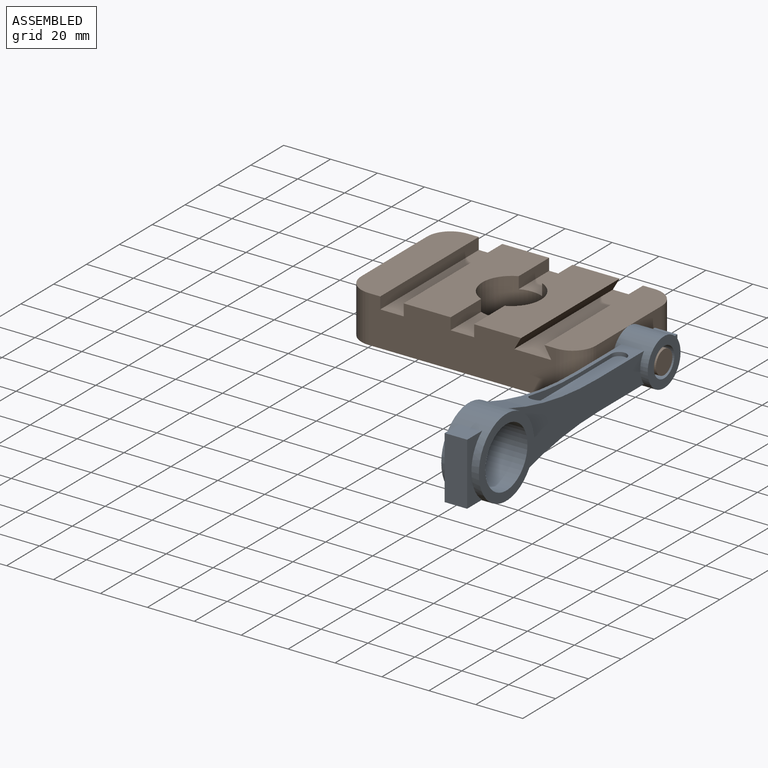
[diagram: assembled view]
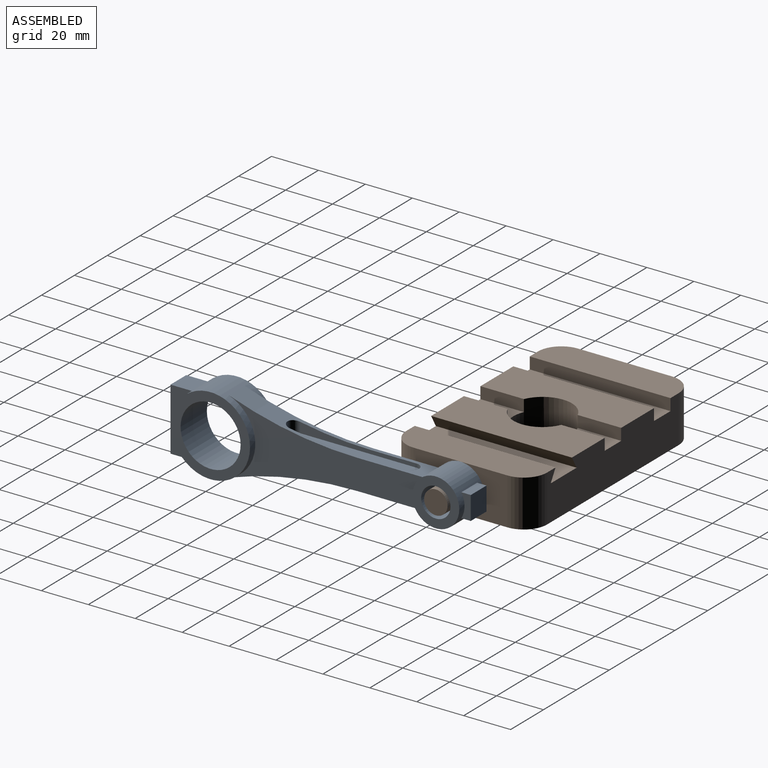
[diagram: assembled view, second angle]
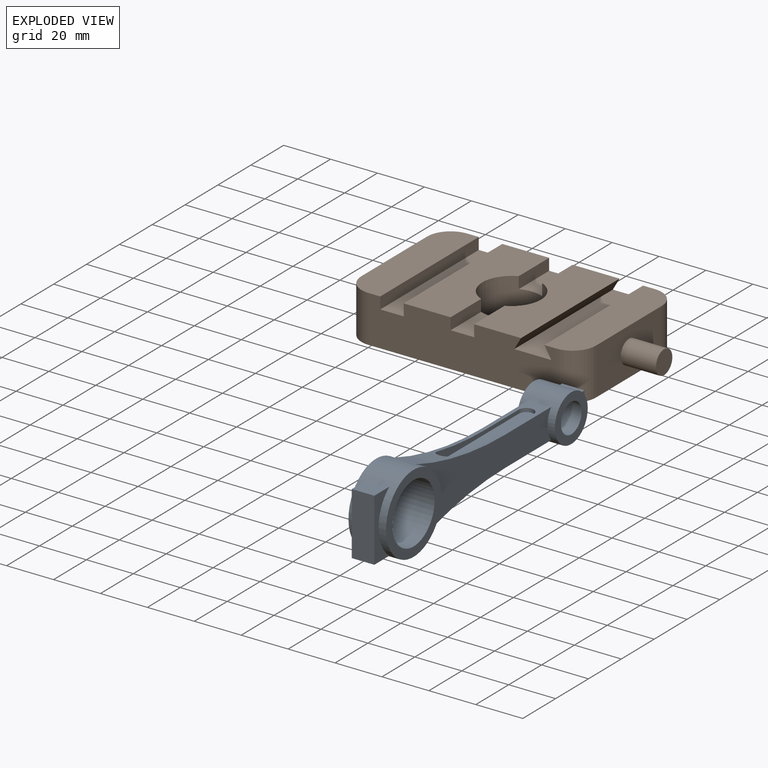
[diagram: exploded view]
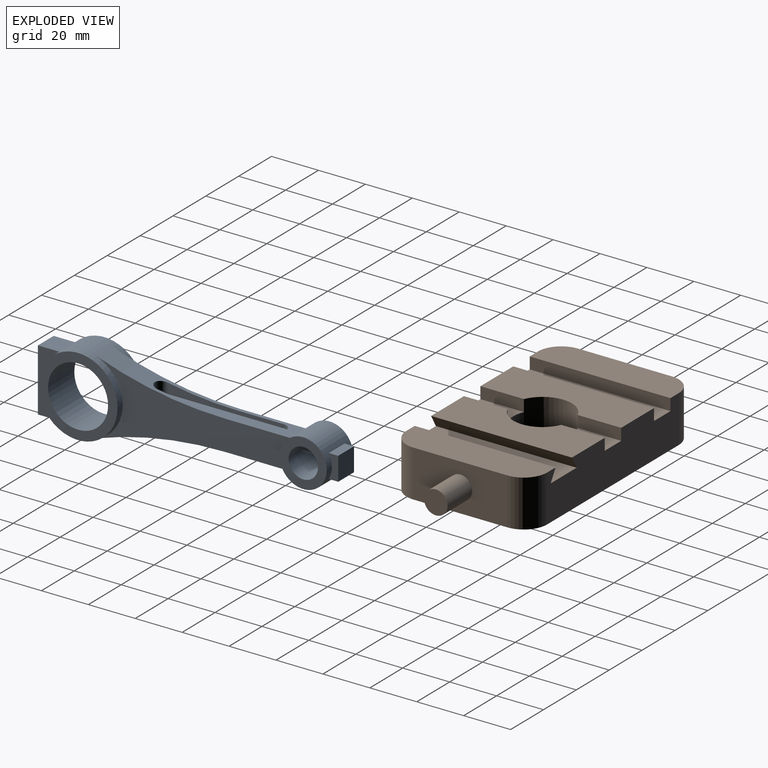
[diagram: exploded view, second angle]
ASSEMBLY  parts=2 mates=2
PART A: 34 faces, bbox 33.6x16x128 mm
  f0: plane 28x9.6mm, normal (-1,0,0), area 126.7mm2, adj f1,f4,f5,f10,f21,f22,f23
  f1: cylinder r=163.3mm len=54.69mm, axis (0,1,0), area 326.4mm2, adj f0,f4,f5,f11,f21,f22,f24
  f2: plane 10x4mm, normal (0,-1,0), area 30.9mm2, adj f8,f9,f10,f27
  f3: plane 10x4mm, normal (0,1,0), area 30.9mm2, adj f8,f9,f10,f27
  f4: plane 82.69x31.66mm, normal (0,-1,0), area 1120mm2, adj f0,f1,f10,f11,f25,f26
  f5: plane 82.69x31.66mm, normal (0,1,0), area 1120mm2, adj f0,f1,f10,f11,f25,f26
  f6: cylinder r=12.8mm len=25.6mm, axis (0,1,0), area 1286.8mm2, adj f16,f17
  f7: cylinder r=6.25mm len=16mm, axis (0,1,0), area 628.3mm2, adj f18,f19
  f8: plane 10x9.6mm, normal (0,0,1), area 96mm2, adj f2,f3,f9,f27
  f9: plane 9.6x4mm, normal (-1,0,0), area 38.4mm2, adj f2,f3,f8,f10
  f10: cylinder r=10mm len=20mm, axis (0,1,0), area 771.4mm2, adj f0,f2,f3,f4,f5,f9,f18,f19
  f11: cylinder r=16.8mm len=33.6mm, axis (0,1,0), area 997.7mm2, adj f1,f4,f5,f12,f14,f15,f16,f17
  f12: plane 9.6x9.08mm, normal (-1,0,0), area 87.1mm2, adj f11,f13,f14,f15
  f13: plane 26.6x9.6mm, normal (0,0,-1), area 255.4mm2, adj f12,f14,f15,f28
  f14: plane 26.6x9.08mm, normal (0,-1,0), area 120.1mm2, adj f11,f12,f13,f28
  f15: plane 26.6x9.08mm, normal (0,1,0), area 120.1mm2, adj f11,f12,f13,f28
  f16: plane 33.6x33.6mm, normal (0,1,0), area 372mm2, adj f6,f11
  f17: plane 33.6x33.6mm, normal (0,-1,0), area 372mm2, adj f6,f11
  f18: plane 20x20mm, normal (0,1,0), area 191.4mm2, adj f7,f10
  f19: plane 20x20mm, normal (0,-1,0), area 191.4mm2, adj f7,f10
  f20: plane 56x6.4mm, normal (-1,0,0), area 349.6mm2, adj f21,f22,f23,f24
  f21: plane 49.6x4.36mm, normal (0,1,0), area 106.8mm2, adj f0,f1,f20,f23,f24
  f22: plane 49.6x4.36mm, normal (0,-1,0), area 106.8mm2, adj f0,f1,f20,f23,f24
  f23: cylinder r=3.2mm len=6.4mm, axis (-1,0,0), area 16.1mm2, adj f0,f20,f21,f22
  f24: cylinder r=3.2mm len=6.4mm, axis (1,0,0), area 47.8mm2, adj f1,f20,f21,f22
  f25: plane 28x9.6mm, normal (1,0,0), area 126.7mm2, adj f4,f5,f10,f26,f30,f31,f32
  f26: cylinder r=163.3mm len=54.69mm, axis (0,1,0), area 326.4mm2, adj f4,f5,f11,f25,f30,f31,f33
  f27: plane 9.6x4mm, normal (1,0,0), area 38.4mm2, adj f2,f3,f8,f10
  f28: plane 9.6x9.08mm, normal (1,0,0), area 87.1mm2, adj f11,f13,f14,f15
  f29: plane 56x6.4mm, normal (1,0,0), area 349.6mm2, adj f30,f31,f32,f33
  f30: plane 49.6x4.36mm, normal (0,1,0), area 106.8mm2, adj f25,f26,f29,f32,f33
  f31: plane 49.6x4.36mm, normal (0,-1,0), area 106.8mm2, adj f25,f26,f29,f32,f33
  f32: cylinder r=3.2mm len=6.4mm, axis (1,0,0), area 16.1mm2, adj f25,f29,f30,f31
  f33: cylinder r=3.2mm len=6.4mm, axis (-1,0,0), area 47.8mm2, adj f26,f29,f30,f31
PART B: 28 faces, bbox 115x60x20 mm
  f0: plane 60x15mm, normal (0,0,1), area 857.1mm2, adj f1,f2,f7,f21,f24,f25
  f1: plane 80x20mm, normal (0,1,0), area 1435.6mm2, adj f0,f4,f5,f6,f9,f10,f11,f12
  f2: plane 80x20mm, normal (0,-1,0), area 1435.6mm2, adj f0,f4,f5,f6,f9,f13,f14,f15
  f3: cylinder r=12.5mm len=25mm, axis (0,0,-1), area 1467.9mm2, adj f5,f6,f9,f10,f11,f12,f13,f14
  f4: plane 60x15mm, normal (0,0,1), area 857.1mm2, adj f1,f2,f8,f16,f26,f27
  f5: plane 60x20mm, normal (0,0,1), area 1076.1mm2, adj f1,f2,f3,f10,f13,f17
  f6: plane 60x20mm, normal (0,0,1), area 1076.1mm2, adj f1,f2,f3,f11,f14,f19
  f7: plane 40x20mm, normal (1,0,0), area 721.5mm2, adj f0,f9,f22,f24,f25
  f8: plane 40x20mm, normal (-1,0,0), area 800mm2, adj f4,f9,f26,f27
  f9: plane 100x60mm, normal (0,0,-1), area 5423.3mm2, adj f1,f2,f3,f7,f8,f24,f25,f26
  f10: plane 18.54x5mm, normal (1,0,0), area 92.7mm2, adj f1,f3,f5,f12
  f11: plane 18.54x5mm, normal (-1,0,0), area 92.7mm2, adj f1,f3,f6,f12
  f12: plane 18.54x10mm, normal (0,0,1), area 178.4mm2, adj f1,f3,f10,f11
  f13: plane 18.54x5mm, normal (1,0,0), area 92.7mm2, adj f2,f3,f5,f15
  f14: plane 18.54x5mm, normal (-1,0,0), area 92.7mm2, adj f2,f3,f6,f15
  f15: plane 18.54x10mm, normal (0,0,1), area 178.4mm2, adj f2,f3,f13,f14
  f16: plane 60x5mm, normal (1,0,0), area 300mm2, adj f1,f2,f4,f18
  f17: plane 60x5mm, normal (-1,0,0), area 300mm2, adj f1,f2,f5,f18
  f18: plane 60x10mm, normal (0,0,1), area 600mm2, adj f1,f2,f16,f17
  f19: plane 60x5mm, normal (0.87,0,-0.5), area 346.4mm2, adj f1,f2,f6,f20
  f20: plane 60x15.77mm, normal (0,0,1), area 946.4mm2, adj f1,f2,f19,f21
  f21: plane 60x5mm, normal (-0.87,0,-0.5), area 346.4mm2, adj f0,f1,f2,f20
  f22: cylinder r=5mm len=15mm, axis (-1,0,0), area 471.2mm2, adj f7,f23
  f23: plane 10x10mm, normal (1,0,0), area 78.5mm2, adj f22
  f24: cylinder r=10mm len=20mm, axis (0,0,1), area 314.2mm2, adj f0,f2,f7,f9
  f25: cylinder r=10mm len=20mm, axis (0,0,-1), area 314.2mm2, adj f0,f1,f7,f9
  f26: cylinder r=10mm len=20mm, axis (0,0,1), area 314.2mm2, adj f1,f4,f8,f9
  f27: cylinder r=10mm len=20mm, axis (0,0,-1), area 314.2mm2, adj f2,f4,f8,f9
PLACE A rot(axis=(-0.58,-0.58,-0.58),120deg) t=(47.67,-80.93,-3.97)mm
PLACE B t=(-9.33,15.07,-13.97)mm fixed
MATE cylindrical B.f22 <-> A.f7  axis (1,0,0) through (40.67,15.07,-3.97)mm
MATE planar B.f22 <-> A.f10  axis (1,0,0) through (55.67,15.07,-3.97)mm
